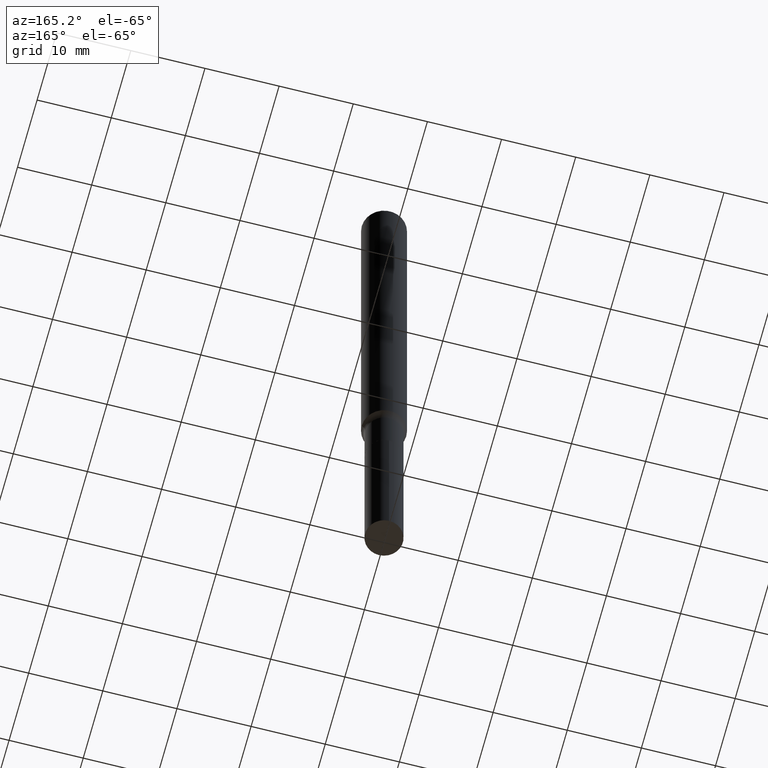
[diagram: clean part render]
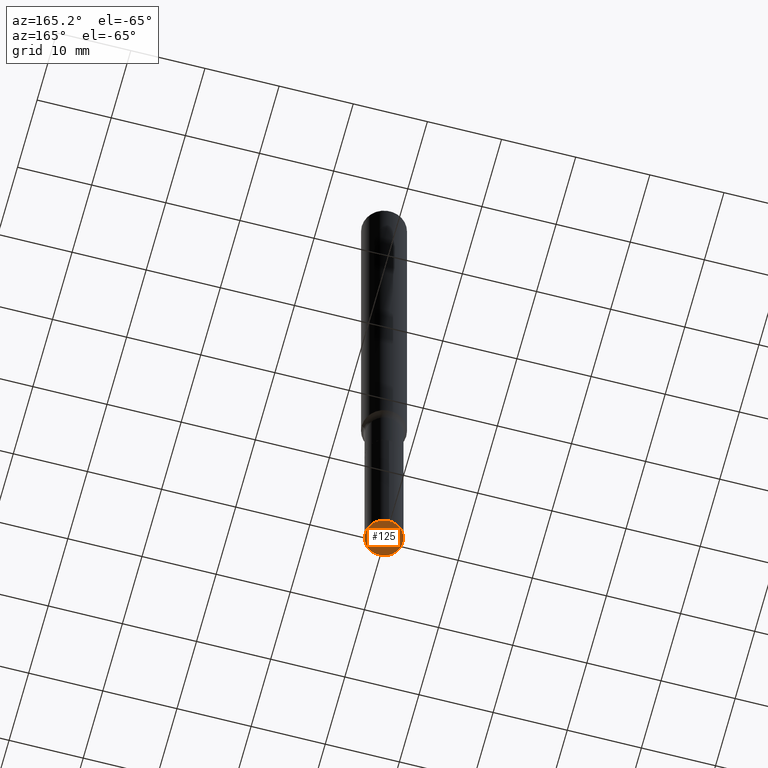
[diagram: same view with one face highlighted and labeled with its STEP entity id]
A machine part, auxiliary view. The second image highlights one B-rep face of the part: STEP entity #125.
In plain terms, the highlighted planar face has unit normal (-0, 0, 1).
Its self-contained STEP definition (entity closure, byte-faithful):
#17 = EDGE_LOOP ( 'NONE', ( #432, #225 ) ) ;
#30 = CARTESIAN_POINT ( 'NONE',  ( 9.139920139182118548E-29, -1.306832199932537301E-14, -3.740200000000000635 ) ) ;
#32 = DIRECTION ( 'NONE',  ( -2.438690618148768155E-29, 3.501188089901729576E-15, 1.000000000000000000 ) ) ;
#33 = AXIS2_PLACEMENT_3D ( 'NONE', #198, #334, #408 ) ;
#110 = EDGE_CURVE ( 'NONE', #134, #391, #245, .T. ) ;
#125 = ADVANCED_FACE ( 'NONE', ( #369 ), #188, .F. ) ;
#129 = DIRECTION ( 'NONE',  ( -6.982962677686265922E-15, -1.000000000000000000, 3.501188089901729576E-15 ) ) ;
#132 = AXIS2_PLACEMENT_3D ( 'NONE', #30, #32, #174 ) ;
#134 = VERTEX_POINT ( 'NONE', #341 ) ;
#174 = DIRECTION ( 'NONE',  ( -6.982962677686266711E-15, -1.000000000000000000, 5.441928274231598965E-15 ) ) ;
#183 = AXIS2_PLACEMENT_3D ( 'NONE', #456, #306, #129 ) ;
#188 = PLANE ( 'NONE',  #183 ) ;
#192 = CIRCLE ( 'NONE', #132, 0.1004000000000000170 ) ;
#198 = CARTESIAN_POINT ( 'NONE',  ( 9.139920139182118548E-29, -1.306832199932537301E-14, -3.740200000000000635 ) ) ;
#225 = ORIENTED_EDGE ( 'NONE', *, *, #110, .F. ) ;
#245 = CIRCLE ( 'NONE', #33, 0.1004000000000000170 ) ;
#288 = CARTESIAN_POINT ( 'NONE',  ( -7.010894528396099633E-16, -0.1004000000000130899, -3.740200000000000191 ) ) ;
#306 = DIRECTION ( 'NONE',  ( -2.438690618148767874E-29, 3.501188089901729576E-15, 1.000000000000000000 ) ) ;
#310 = EDGE_CURVE ( 'NONE', #391, #134, #192, .T. ) ;
#334 = DIRECTION ( 'NONE',  ( -2.438690618148768155E-29, 3.501188089901729576E-15, 1.000000000000000000 ) ) ;
#341 = CARTESIAN_POINT ( 'NONE',  ( 7.133849067032199880E-16, 0.1003999999999869580, -3.740200000000001079 ) ) ;
#369 = FACE_OUTER_BOUND ( 'NONE', #17, .T. ) ;
#391 = VERTEX_POINT ( 'NONE', #288 ) ;
#408 = DIRECTION ( 'NONE',  ( -6.982962677686266711E-15, -1.000000000000000000, 5.441928274231598965E-15 ) ) ;
#432 = ORIENTED_EDGE ( 'NONE', *, *, #310, .F. ) ;
#456 = CARTESIAN_POINT ( 'NONE',  ( -5.066510067315248849E-29, -3.341273863482216208E-14, -3.740200000000000635 ) ) ;